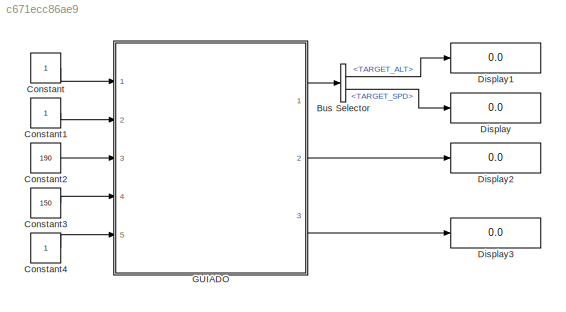
MODEL slx_c671ecc86ae9
KIND model
CONFIG AbsTol = auto
CONFIG EnableMultiTasking = off
CONFIG FixedStep = 0.2
CONFIG MaxStep = auto
CONFIG MinStep = auto
CONFIG RelTol = 1e-3
CONFIG SampleTimeConstraint = Unconstrained
CONFIG SolverName = FixedStepAuto
CONFIG StartTime = 0
CONFIG StopTime = 10.0
BLOCK [BusSelector] Bus Selector
  OutputSignals = TARGET_ALT,TARGET_SPD
  Ports = [1, 2]
BLOCK [Constant] Constant
BLOCK [Constant] Constant1
BLOCK [Constant] Constant2
  Value = 190
BLOCK [Constant] Constant3
  Value = 150
BLOCK [Constant] Constant4
BLOCK [Display] Display
  Decimation = 1
  Ports = [1]
BLOCK [Display] Display1
  Decimation = 1
  Ports = [1]
BLOCK [Display] Display2
  Decimation = 1
  Ports = [1]
BLOCK [Display] Display3
  Decimation = 1
  Ports = [1]
BLOCK [SubSystem] GUIADO
  Ports = [5, 3]
  ReferencedSubsystem = GUIDANCE_SUBSYSTEM
  RequestExecContextInheritance = off
LINE Bus Selector:1 -> Display1:1
LINE Bus Selector:2 -> Display:1
LINE Constant1:1 -> GUIADO:2
LINE Constant2:1 -> GUIADO:3
LINE Constant3:1 -> GUIADO:4
LINE Constant4:1 -> GUIADO:5
LINE Constant:1 -> GUIADO:1
LINE GUIADO:1 -> Bus Selector:1
LINE GUIADO:2 -> Display2:1
LINE GUIADO:3 -> Display3:1
CHART Test Sequence states=2 transitions=3
  STATE_LABEL 'step_1\n'
  STATE_LABEL 'step_2\nINTERP_VALID = true;\nLEG_SEQUENCE=false;'
